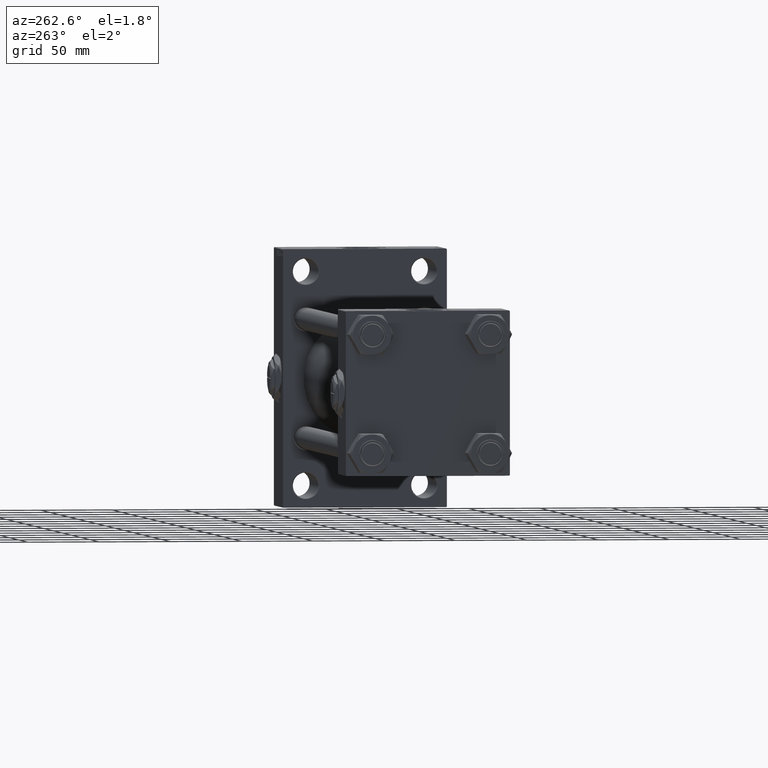
[diagram: clean part render]
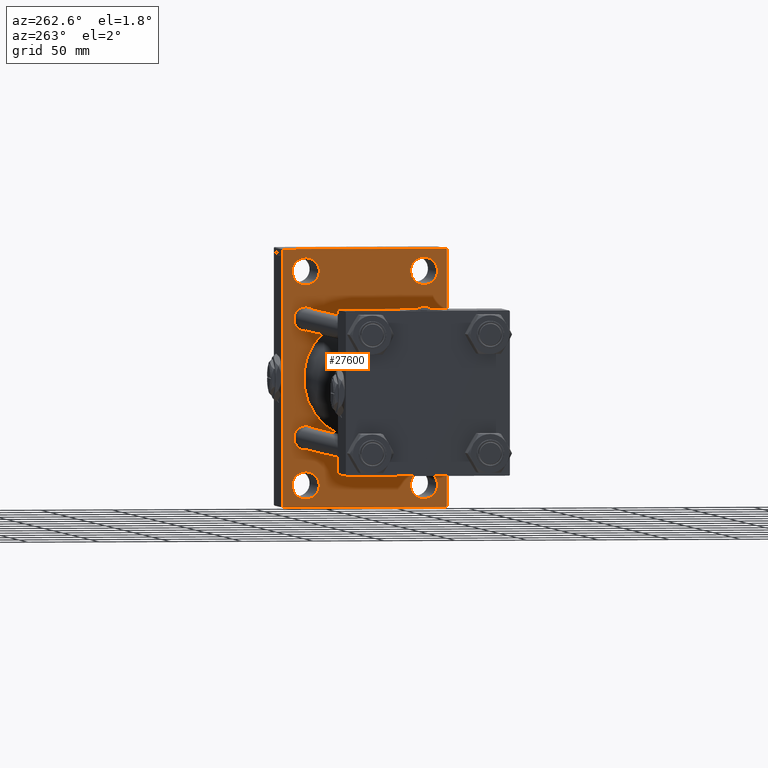
[diagram: same view with one face highlighted and labeled with its STEP entity id]
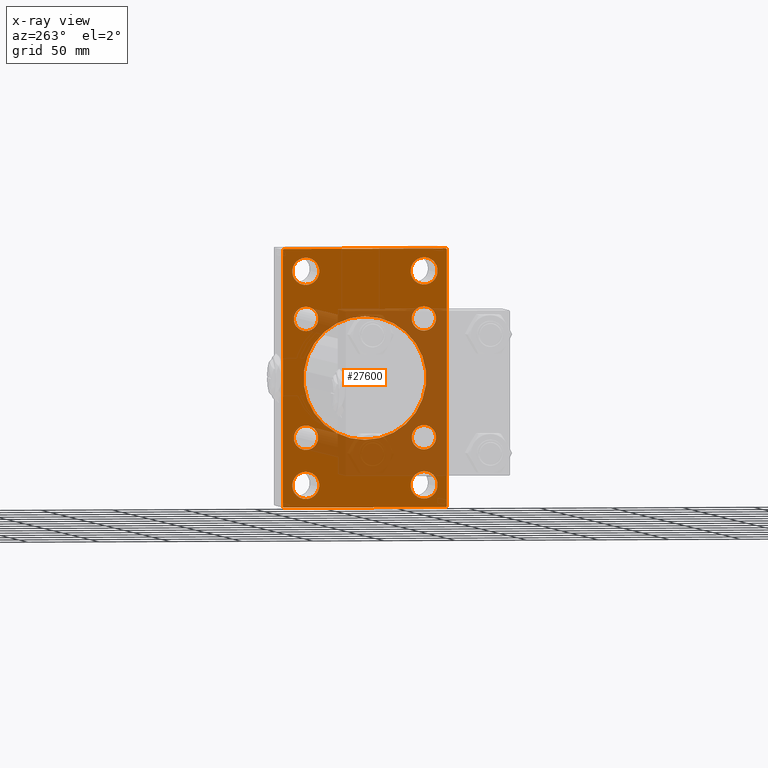
[diagram: x-ray of the same camera — body ghosted, the highlighted face saturated]
A machine part, auxiliary view. The second image highlights one B-rep face of the part: STEP entity #27600.
The next image is the same camera in x-ray: the body ghosted, the highlighted face saturated — about 34% of this face is hidden behind the body in this view.
In plain terms, the highlighted planar face has unit normal (-1, 0, 0).
Its self-contained STEP definition (entity closure, byte-faithful):
#502 = ORIENTED_EDGE ( 'NONE', *, *, #10834, .T. ) ;
#509 = EDGE_CURVE ( 'NONE', #21289, #12416, #23778, .T. ) ;
#1122 = EDGE_CURVE ( 'NONE', #27725, #47167, #48609, .T. ) ;
#1540 = DIRECTION ( 'NONE',  ( 1.000000000000000000, -0.000000000000000000, 0.000000000000000000 ) ) ;
#1635 = DIRECTION ( 'NONE',  ( 0.000000000000000000, 0.000000000000000000, 1.000000000000000000 ) ) ;
#1744 = DIRECTION ( 'NONE',  ( -0.000000000000000000, 0.7071067811865524577, 0.7071067811865426878 ) ) ;
#1807 = CARTESIAN_POINT ( 'NONE',  ( 339.9999999999999432, -41.49999999999999289, -74.49999999999998579 ) ) ;
#1819 = ORIENTED_EDGE ( 'NONE', *, *, #17760, .F. ) ;
#1879 = CARTESIAN_POINT ( 'NONE',  ( 339.9999999999999432, -2.602085213965210642E-15, 43.00000000000000000 ) ) ;
#1893 = FACE_BOUND ( 'NONE', #33715, .T. ) ;
#1930 = DIRECTION ( 'NONE',  ( 0.000000000000000000, 0.000000000000000000, -1.000000000000000000 ) ) ;
#2318 = EDGE_LOOP ( 'NONE', ( #47909, #6354 ) ) ;
#2450 = EDGE_CURVE ( 'NONE', #43880, #19335, #34297, .T. ) ;
#2942 = CIRCLE ( 'NONE', #20655, 8.500000000000007105 ) ;
#3247 = EDGE_CURVE ( 'NONE', #39988, #28836, #2942, .T. ) ;
#3262 = EDGE_CURVE ( 'NONE', #23697, #40721, #39130, .T. ) ;
#3271 = CARTESIAN_POINT ( 'NONE',  ( 339.9999999999999432, 57.49999999999997868, -90.00000000000000000 ) ) ;
#3511 = CARTESIAN_POINT ( 'NONE',  ( 339.9999999999999432, -41.49999999999999289, -65.00000000000008527 ) ) ;
#3549 = ORIENTED_EDGE ( 'NONE', *, *, #43380, .T. ) ;
#3555 = ORIENTED_EDGE ( 'NONE', *, *, #21917, .F. ) ;
#3757 = DIRECTION ( 'NONE',  ( 0.000000000000000000, -1.000000000000000000, -1.206764157201257045E-16 ) ) ;
#4033 = CIRCLE ( 'NONE', #18541, 9.499999999999896971 ) ;
#4074 = DIRECTION ( 'NONE',  ( 1.000000000000000000, -0.000000000000000000, 0.000000000000000000 ) ) ;
#4228 = DIRECTION ( 'NONE',  ( 1.000000000000000000, -0.000000000000000000, 0.000000000000000000 ) ) ;
#5087 = ORIENTED_EDGE ( 'NONE', *, *, #3247, .T. ) ;
#5378 = VECTOR ( 'NONE', #20298, 1000.000000000000114 ) ;
#5573 = EDGE_CURVE ( 'NONE', #19335, #43880, #15907, .T. ) ;
#5960 = DIRECTION ( 'NONE',  ( 1.000000000000000000, -0.000000000000000000, 0.000000000000000000 ) ) ;
#6157 = DIRECTION ( 'NONE',  ( 1.000000000000000000, -0.000000000000000000, 0.000000000000000000 ) ) ;
#6207 = ORIENTED_EDGE ( 'NONE', *, *, #26463, .T. ) ;
#6354 = ORIENTED_EDGE ( 'NONE', *, *, #3262, .T. ) ;
#6585 = DIRECTION ( 'NONE',  ( 1.000000000000000000, -0.000000000000000000, 0.000000000000000000 ) ) ;
#6610 = CIRCLE ( 'NONE', #13056, 9.499999999999896971 ) ;
#6810 = ORIENTED_EDGE ( 'NONE', *, *, #1122, .T. ) ;
#6913 = VECTOR ( 'NONE', #3757, 1000.000000000000000 ) ;
#7073 = EDGE_CURVE ( 'NONE', #17063, #43704, #36074, .T. ) ;
#7298 = CARTESIAN_POINT ( 'NONE',  ( 339.9999999999999432, 41.50000000000000711, -74.50000000000000000 ) ) ;
#7329 = CIRCLE ( 'NONE', #36250, 9.500000000000008882 ) ;
#7541 = ORIENTED_EDGE ( 'NONE', *, *, #37945, .T. ) ;
#7608 = VERTEX_POINT ( 'NONE', #30099 ) ;
#7649 = EDGE_LOOP ( 'NONE', ( #33360, #26423 ) ) ;
#7923 = EDGE_CURVE ( 'NONE', #12416, #21289, #41699, .T. ) ;
#8021 = VERTEX_POINT ( 'NONE', #42587 ) ;
#8222 = VERTEX_POINT ( 'NONE', #8540 ) ;
#8540 = CARTESIAN_POINT ( 'NONE',  ( 339.9999999999999432, -57.50000000000002132, 89.50000000000002842 ) ) ;
#8562 = AXIS2_PLACEMENT_3D ( 'NONE', #33956, #25403, #21631 ) ;
#9116 = CARTESIAN_POINT ( 'NONE',  ( 339.9999999999999432, -41.34999999999998721, -32.85000000000000142 ) ) ;
#9187 = ORIENTED_EDGE ( 'NONE', *, *, #20657, .T. ) ;
#9217 = FACE_BOUND ( 'NONE', #26786, .T. ) ;
#9453 = CARTESIAN_POINT ( 'NONE',  ( 339.9999999999999432, 41.50000000000000711, -74.50000000000000000 ) ) ;
#9463 = CARTESIAN_POINT ( 'NONE',  ( 339.9999999999999432, 0.000000000000000000, 0.000000000000000000 ) ) ;
#9882 = DIRECTION ( 'NONE',  ( 0.000000000000000000, 0.000000000000000000, 1.000000000000000000 ) ) ;
#9907 = EDGE_CURVE ( 'NONE', #7608, #8021, #32924, .T. ) ;
#10148 = CARTESIAN_POINT ( 'NONE',  ( 339.9999999999999432, -41.49999999999999289, 65.00000000000000000 ) ) ;
#10206 = FACE_BOUND ( 'NONE', #36917, .T. ) ;
#10551 = AXIS2_PLACEMENT_3D ( 'NONE', #9453, #6157, #1635 ) ;
#10647 = AXIS2_PLACEMENT_3D ( 'NONE', #19975, #11917, #31768 ) ;
#10834 = EDGE_CURVE ( 'NONE', #28836, #39988, #40889, .T. ) ;
#10998 = CARTESIAN_POINT ( 'NONE',  ( 339.9999999999999432, 41.34999999999999432, -32.84999999999999432 ) ) ;
#11231 = AXIS2_PLACEMENT_3D ( 'NONE', #14278, #36662, #48251 ) ;
#11254 = VERTEX_POINT ( 'NONE', #42624 ) ;
#11256 = ORIENTED_EDGE ( 'NONE', *, *, #509, .T. ) ;
#11917 = DIRECTION ( 'NONE',  ( 1.000000000000000000, -0.000000000000000000, 0.000000000000000000 ) ) ;
#12416 = VERTEX_POINT ( 'NONE', #45622 ) ;
#13056 = AXIS2_PLACEMENT_3D ( 'NONE', #45791, #4228, #42497 ) ;
#13252 = FACE_BOUND ( 'NONE', #21099, .T. ) ;
#13476 = VERTEX_POINT ( 'NONE', #23361 ) ;
#13490 = VECTOR ( 'NONE', #39448, 1000.000000000000114 ) ;
#13910 = CIRCLE ( 'NONE', #31565, 9.500000000000008882 ) ;
#14158 = VERTEX_POINT ( 'NONE', #19898 ) ;
#14278 = CARTESIAN_POINT ( 'NONE',  ( 339.9999999999999432, 41.34999999999999432, 41.35000000000000142 ) ) ;
#14621 = VECTOR ( 'NONE', #22643, 1000.000000000000000 ) ;
#15907 = CIRCLE ( 'NONE', #44026, 8.500000000000007105 ) ;
#16386 = LINE ( 'NONE', #31710, #49209 ) ;
#16430 = CARTESIAN_POINT ( 'NONE',  ( 339.9999999999999432, 41.50000000000000711, 74.50000000000001421 ) ) ;
#16447 = EDGE_CURVE ( 'NONE', #28205, #11254, #29009, .T. ) ;
#17057 = LINE ( 'NONE', #32640, #13490 ) ;
#17063 = VERTEX_POINT ( 'NONE', #10998 ) ;
#17192 = DIRECTION ( 'NONE',  ( 1.000000000000000000, -0.000000000000000000, 0.000000000000000000 ) ) ;
#17712 = EDGE_CURVE ( 'NONE', #11254, #28205, #13910, .T. ) ;
#17760 = EDGE_CURVE ( 'NONE', #8222, #49075, #24871, .T. ) ;
#17961 = CARTESIAN_POINT ( 'NONE',  ( 339.9999999999999432, 41.34999999999999432, -41.35000000000000142 ) ) ;
#18111 = CARTESIAN_POINT ( 'NONE',  ( 339.9999999999999432, 57.49999999999997158, 89.99999999999998579 ) ) ;
#18541 = AXIS2_PLACEMENT_3D ( 'NONE', #1807, #17192, #9882 ) ;
#18564 = CARTESIAN_POINT ( 'NONE',  ( 339.9999999999999432, 41.50000000000000711, -64.99999999999998579 ) ) ;
#18712 = CARTESIAN_POINT ( 'NONE',  ( 339.9999999999999432, -41.34999999999998721, 49.85000000000002274 ) ) ;
#18892 = EDGE_LOOP ( 'NONE', ( #24075, #3549 ) ) ;
#18996 = CARTESIAN_POINT ( 'NONE',  ( 339.9999999999999432, 41.50000000000000711, 84.00000000000001421 ) ) ;
#19145 = DIRECTION ( 'NONE',  ( 1.000000000000000000, -0.000000000000000000, 0.000000000000000000 ) ) ;
#19226 = AXIS2_PLACEMENT_3D ( 'NONE', #24621, #5960, #47764 ) ;
#19335 = VERTEX_POINT ( 'NONE', #18712 ) ;
#19427 = CARTESIAN_POINT ( 'NONE',  ( 339.9999999999999432, 41.34999999999999432, -49.85000000000001563 ) ) ;
#19516 = ORIENTED_EDGE ( 'NONE', *, *, #48723, .T. ) ;
#19660 = CARTESIAN_POINT ( 'NONE',  ( 339.9999999999999432, 41.50000000000000711, 74.50000000000001421 ) ) ;
#19898 = CARTESIAN_POINT ( 'NONE',  ( 339.9999999999999432, 56.99999999999997158, 89.99999999999998579 ) ) ;
#19908 = CARTESIAN_POINT ( 'NONE',  ( 339.9999999999999432, -41.34999999999998721, 32.85000000000000142 ) ) ;
#19975 = CARTESIAN_POINT ( 'NONE',  ( 339.9999999999999432, 41.34999999999999432, 41.35000000000000142 ) ) ;
#20002 = AXIS2_PLACEMENT_3D ( 'NONE', #22745, #41109, #26023 ) ;
#20220 = DIRECTION ( 'NONE',  ( 0.000000000000000000, 0.000000000000000000, 1.000000000000000000 ) ) ;
#20226 = CARTESIAN_POINT ( 'NONE',  ( 339.9999999999999432, -57.00000000000002132, -90.00000000000001421 ) ) ;
#20298 = DIRECTION ( 'NONE',  ( 0.000000000000000000, -0.7071067811865965336, 0.7071067811864985009 ) ) ;
#20655 = AXIS2_PLACEMENT_3D ( 'NONE', #39318, #42856, #23742 ) ;
#20657 = EDGE_CURVE ( 'NONE', #40387, #13476, #44707, .T. ) ;
#20714 = AXIS2_PLACEMENT_3D ( 'NONE', #9463, #40425, #40172 ) ;
#21010 = CARTESIAN_POINT ( 'NONE',  ( 339.9999999999999432, -41.34999999999998721, -49.85000000000002274 ) ) ;
#21099 = EDGE_LOOP ( 'NONE', ( #5087, #502 ) ) ;
#21289 = VERTEX_POINT ( 'NONE', #1879 ) ;
#21508 = ORIENTED_EDGE ( 'NONE', *, *, #33624, .T. ) ;
#21631 = DIRECTION ( 'NONE',  ( 0.000000000000000000, 0.000000000000000000, 1.000000000000000000 ) ) ;
#21917 = EDGE_CURVE ( 'NONE', #14158, #36601, #32181, .T. ) ;
#21929 = VECTOR ( 'NONE', #1930, 1000.000000000000000 ) ;
#22229 = DIRECTION ( 'NONE',  ( 1.000000000000000000, -0.000000000000000000, 0.000000000000000000 ) ) ;
#22643 = DIRECTION ( 'NONE',  ( 0.000000000000000000, 3.854941057726238467E-17, -1.000000000000000000 ) ) ;
#22745 = CARTESIAN_POINT ( 'NONE',  ( 339.9999999999999432, -2.602085213965210642E-15, 0.000000000000000000 ) ) ;
#22976 = VERTEX_POINT ( 'NONE', #3511 ) ;
#23361 = CARTESIAN_POINT ( 'NONE',  ( 339.9999999999999432, 41.50000000000000711, -84.00000000000000000 ) ) ;
#23495 = CARTESIAN_POINT ( 'NONE',  ( 339.9999999999999432, 41.34999999999999432, -41.35000000000000142 ) ) ;
#23697 = VERTEX_POINT ( 'NONE', #25712 ) ;
#23742 = DIRECTION ( 'NONE',  ( 0.000000000000000000, 0.000000000000000000, 1.000000000000000000 ) ) ;
#23778 = CIRCLE ( 'NONE', #27785, 43.00000000000000000 ) ;
#24075 = ORIENTED_EDGE ( 'NONE', *, *, #7073, .T. ) ;
#24104 = CARTESIAN_POINT ( 'NONE',  ( 339.9999999999999432, -2.602085213965210642E-15, 0.000000000000000000 ) ) ;
#24249 = ORIENTED_EDGE ( 'NONE', *, *, #35926, .T. ) ;
#24325 = LINE ( 'NONE', #39892, #5378 ) ;
#24528 = EDGE_CURVE ( 'NONE', #14158, #44183, #17057, .T. ) ;
#24621 = CARTESIAN_POINT ( 'NONE',  ( 339.9999999999999432, -41.34999999999998721, -41.35000000000000853 ) ) ;
#24625 = CARTESIAN_POINT ( 'NONE',  ( 339.9999999999999432, -57.50000000000002132, 89.99999999999997158 ) ) ;
#24871 = LINE ( 'NONE', #24625, #21929 ) ;
#25233 = CARTESIAN_POINT ( 'NONE',  ( 339.9999999999999432, -41.49999999999999289, 74.50000000000001421 ) ) ;
#25380 = CARTESIAN_POINT ( 'NONE',  ( 339.9999999999999432, -57.50000000000002132, -89.50000000000002842 ) ) ;
#25403 = DIRECTION ( 'NONE',  ( 1.000000000000000000, -0.000000000000000000, 0.000000000000000000 ) ) ;
#25490 = VECTOR ( 'NONE', #28912, 1000.000000000000000 ) ;
#25712 = CARTESIAN_POINT ( 'NONE',  ( 339.9999999999999432, 41.50000000000000711, 65.00000000000000000 ) ) ;
#25830 = CIRCLE ( 'NONE', #10551, 9.500000000000008882 ) ;
#26023 = DIRECTION ( 'NONE',  ( 0.000000000000000000, 0.000000000000000000, -1.000000000000000000 ) ) ;
#26423 = ORIENTED_EDGE ( 'NONE', *, *, #16447, .T. ) ;
#26463 = EDGE_CURVE ( 'NONE', #47167, #49075, #24325, .T. ) ;
#26717 = CIRCLE ( 'NONE', #10647, 8.500000000000007105 ) ;
#26786 = EDGE_LOOP ( 'NONE', ( #11256, #40349 ) ) ;
#26896 = LINE ( 'NONE', #18111, #14621 ) ;
#26900 = CARTESIAN_POINT ( 'NONE',  ( 339.9999999999999432, -57.00000000000007105, 89.99999999999997158 ) ) ;
#27079 = AXIS2_PLACEMENT_3D ( 'NONE', #16430, #1540, #20220 ) ;
#27229 = LINE ( 'NONE', #42832, #41957 ) ;
#27600 = ADVANCED_FACE ( 'NONE', ( #44448, #44200, #32622, #44691, #1893, #10206, #32376, #13252, #9217, #43946 ), #35896, .T. ) ;
#27725 = VERTEX_POINT ( 'NONE', #28597 ) ;
#27785 = AXIS2_PLACEMENT_3D ( 'NONE', #24104, #43463, #39432 ) ;
#28095 = ORIENTED_EDGE ( 'NONE', *, *, #9907, .T. ) ;
#28205 = VERTEX_POINT ( 'NONE', #10148 ) ;
#28597 = CARTESIAN_POINT ( 'NONE',  ( 339.9999999999999432, 56.99999999999997868, -90.00000000000000000 ) ) ;
#28836 = VERTEX_POINT ( 'NONE', #21010 ) ;
#28912 = DIRECTION ( 'NONE',  ( 0.000000000000000000, -1.000000000000000000, -1.206764157201257291E-16 ) ) ;
#29009 = CIRCLE ( 'NONE', #40251, 9.500000000000008882 ) ;
#29857 = ORIENTED_EDGE ( 'NONE', *, *, #2450, .T. ) ;
#30099 = CARTESIAN_POINT ( 'NONE',  ( 339.9999999999999432, 41.34999999999999432, 49.85000000000001563 ) ) ;
#31241 = CARTESIAN_POINT ( 'NONE',  ( 339.9999999999999432, -41.49999999999999289, -83.99999999999988631 ) ) ;
#31295 = CARTESIAN_POINT ( 'NONE',  ( 339.9999999999999432, -41.34999999999998721, 41.35000000000000853 ) ) ;
#31565 = AXIS2_PLACEMENT_3D ( 'NONE', #43501, #43750, #47768 ) ;
#31710 = CARTESIAN_POINT ( 'NONE',  ( 339.9999999999999432, -73.49999999999960210, 73.50000000000062528 ) ) ;
#31768 = DIRECTION ( 'NONE',  ( 0.000000000000000000, 0.000000000000000000, 1.000000000000000000 ) ) ;
#32181 = LINE ( 'NONE', #44003, #25490 ) ;
#32289 = DIRECTION ( 'NONE',  ( 0.000000000000000000, 0.000000000000000000, 1.000000000000000000 ) ) ;
#32376 = FACE_BOUND ( 'NONE', #18892, .T. ) ;
#32422 = EDGE_LOOP ( 'NONE', ( #9187, #35649 ) ) ;
#32622 = FACE_BOUND ( 'NONE', #32422, .T. ) ;
#32640 = CARTESIAN_POINT ( 'NONE',  ( 339.9999999999999432, 73.49999999999998579, 73.49999999999998579 ) ) ;
#32924 = CIRCLE ( 'NONE', #11231, 8.500000000000007105 ) ;
#33360 = ORIENTED_EDGE ( 'NONE', *, *, #17712, .T. ) ;
#33624 = EDGE_CURVE ( 'NONE', #22976, #46295, #4033, .T. ) ;
#33715 = EDGE_LOOP ( 'NONE', ( #41545, #29857 ) ) ;
#33956 = CARTESIAN_POINT ( 'NONE',  ( 339.9999999999999432, -41.34999999999998721, 41.35000000000000853 ) ) ;
#34052 = DIRECTION ( 'NONE',  ( 0.000000000000000000, 0.000000000000000000, 1.000000000000000000 ) ) ;
#34175 = EDGE_LOOP ( 'NONE', ( #21508, #7541 ) ) ;
#34267 = ORIENTED_EDGE ( 'NONE', *, *, #37300, .T. ) ;
#34296 = VERTEX_POINT ( 'NONE', #42143 ) ;
#34295 = AXIS2_PLACEMENT_3D ( 'NONE', #7298, #19145, #34472 ) ;
#34297 = CIRCLE ( 'NONE', #8562, 8.500000000000007105 ) ;
#34472 = DIRECTION ( 'NONE',  ( 0.000000000000000000, 0.000000000000000000, 1.000000000000000000 ) ) ;
#35268 = DIRECTION ( 'NONE',  ( -0.000000000000000000, -0.7071067811865573427, -0.7071067811865378028 ) ) ;
#35637 = CIRCLE ( 'NONE', #48509, 8.500000000000007105 ) ;
#35649 = ORIENTED_EDGE ( 'NONE', *, *, #46960, .T. ) ;
#35896 = PLANE ( 'NONE',  #20714 ) ;
#35926 = EDGE_CURVE ( 'NONE', #44183, #34296, #26896, .T. ) ;
#36074 = CIRCLE ( 'NONE', #39273, 8.500000000000007105 ) ;
#36250 = AXIS2_PLACEMENT_3D ( 'NONE', #19660, #38509, #42534 ) ;
#36601 = VERTEX_POINT ( 'NONE', #26900 ) ;
#36662 = DIRECTION ( 'NONE',  ( 1.000000000000000000, -0.000000000000000000, 0.000000000000000000 ) ) ;
#36917 = EDGE_LOOP ( 'NONE', ( #28095, #34267 ) ) ;
#37300 = EDGE_CURVE ( 'NONE', #8021, #7608, #26717, .T. ) ;
#37720 = EDGE_CURVE ( 'NONE', #8222, #36601, #16386, .T. ) ;
#37945 = EDGE_CURVE ( 'NONE', #46295, #22976, #6610, .T. ) ;
#38509 = DIRECTION ( 'NONE',  ( 1.000000000000000000, -0.000000000000000000, 0.000000000000000000 ) ) ;
#39058 = EDGE_CURVE ( 'NONE', #40721, #23697, #7329, .T. ) ;
#39130 = CIRCLE ( 'NONE', #27079, 9.500000000000008882 ) ;
#39273 = AXIS2_PLACEMENT_3D ( 'NONE', #17961, #22229, #34052 ) ;
#39318 = CARTESIAN_POINT ( 'NONE',  ( 339.9999999999999432, -41.34999999999998721, -41.35000000000000853 ) ) ;
#39432 = DIRECTION ( 'NONE',  ( 0.000000000000000000, 0.000000000000000000, -1.000000000000000000 ) ) ;
#39448 = DIRECTION ( 'NONE',  ( 0.000000000000000000, 0.7071067811865474617, -0.7071067811865474617 ) ) ;
#39892 = CARTESIAN_POINT ( 'NONE',  ( 339.9999999999999432, -73.49999999999603517, -73.50000000000625278 ) ) ;
#39988 = VERTEX_POINT ( 'NONE', #9116 ) ;
#40172 = DIRECTION ( 'NONE',  ( -0.000000000000000000, 0.000000000000000000, 1.000000000000000000 ) ) ;
#40251 = AXIS2_PLACEMENT_3D ( 'NONE', #25233, #6585, #49130 ) ;
#40349 = ORIENTED_EDGE ( 'NONE', *, *, #7923, .T. ) ;
#40387 = VERTEX_POINT ( 'NONE', #18564 ) ;
#40425 = DIRECTION ( 'NONE',  ( -1.000000000000000000, 0.000000000000000000, -0.000000000000000000 ) ) ;
#40721 = VERTEX_POINT ( 'NONE', #18996 ) ;
#40889 = CIRCLE ( 'NONE', #19226, 8.500000000000007105 ) ;
#41109 = DIRECTION ( 'NONE',  ( 1.000000000000000000, 0.000000000000000000, 0.000000000000000000 ) ) ;
#41545 = ORIENTED_EDGE ( 'NONE', *, *, #5573, .T. ) ;
#41699 = CIRCLE ( 'NONE', #20002, 43.00000000000000000 ) ;
#41957 = VECTOR ( 'NONE', #35268, 1000.000000000000000 ) ;
#42143 = CARTESIAN_POINT ( 'NONE',  ( 339.9999999999999432, 57.49999999999997868, -89.49999999999995737 ) ) ;
#42497 = DIRECTION ( 'NONE',  ( 0.000000000000000000, 0.000000000000000000, 1.000000000000000000 ) ) ;
#42534 = DIRECTION ( 'NONE',  ( 0.000000000000000000, 0.000000000000000000, 1.000000000000000000 ) ) ;
#42587 = CARTESIAN_POINT ( 'NONE',  ( 339.9999999999999432, 41.34999999999999432, 32.84999999999999432 ) ) ;
#42624 = CARTESIAN_POINT ( 'NONE',  ( 339.9999999999999432, -41.49999999999999289, 84.00000000000001421 ) ) ;
#42832 = CARTESIAN_POINT ( 'NONE',  ( 339.9999999999999432, 73.49999999999920419, -73.50000000000125056 ) ) ;
#42856 = DIRECTION ( 'NONE',  ( 1.000000000000000000, -0.000000000000000000, 0.000000000000000000 ) ) ;
#43380 = EDGE_CURVE ( 'NONE', #43704, #17063, #35637, .T. ) ;
#43463 = DIRECTION ( 'NONE',  ( 1.000000000000000000, 0.000000000000000000, 0.000000000000000000 ) ) ;
#43501 = CARTESIAN_POINT ( 'NONE',  ( 339.9999999999999432, -41.49999999999999289, 74.50000000000001421 ) ) ;
#43704 = VERTEX_POINT ( 'NONE', #19427 ) ;
#43750 = DIRECTION ( 'NONE',  ( 1.000000000000000000, -0.000000000000000000, 0.000000000000000000 ) ) ;
#43880 = VERTEX_POINT ( 'NONE', #19908 ) ;
#43946 = FACE_OUTER_BOUND ( 'NONE', #49758, .T. ) ;
#44003 = CARTESIAN_POINT ( 'NONE',  ( 339.9999999999999432, 57.49999999999997158, 89.99999999999998579 ) ) ;
#44026 = AXIS2_PLACEMENT_3D ( 'NONE', #31295, #46667, #32289 ) ;
#44183 = VERTEX_POINT ( 'NONE', #46953 ) ;
#44200 = FACE_BOUND ( 'NONE', #34175, .T. ) ;
#44448 = FACE_BOUND ( 'NONE', #7649, .T. ) ;
#44691 = FACE_BOUND ( 'NONE', #2318, .T. ) ;
#44707 = CIRCLE ( 'NONE', #34295, 9.500000000000008882 ) ;
#44852 = ORIENTED_EDGE ( 'NONE', *, *, #37720, .T. ) ;
#45622 = CARTESIAN_POINT ( 'NONE',  ( 339.9999999999999432, 2.663896022368408223E-15, -43.00000000000000000 ) ) ;
#45791 = CARTESIAN_POINT ( 'NONE',  ( 339.9999999999999432, -41.49999999999999289, -74.49999999999998579 ) ) ;
#46295 = VERTEX_POINT ( 'NONE', #31241 ) ;
#46640 = DIRECTION ( 'NONE',  ( 0.000000000000000000, 0.000000000000000000, 1.000000000000000000 ) ) ;
#46667 = DIRECTION ( 'NONE',  ( 1.000000000000000000, -0.000000000000000000, 0.000000000000000000 ) ) ;
#46953 = CARTESIAN_POINT ( 'NONE',  ( 339.9999999999999432, 57.49999999999997158, 89.49999999999998579 ) ) ;
#46960 = EDGE_CURVE ( 'NONE', #13476, #40387, #25830, .T. ) ;
#47167 = VERTEX_POINT ( 'NONE', #20226 ) ;
#47764 = DIRECTION ( 'NONE',  ( 0.000000000000000000, 0.000000000000000000, 1.000000000000000000 ) ) ;
#47768 = DIRECTION ( 'NONE',  ( 0.000000000000000000, 0.000000000000000000, 1.000000000000000000 ) ) ;
#47909 = ORIENTED_EDGE ( 'NONE', *, *, #39058, .T. ) ;
#48251 = DIRECTION ( 'NONE',  ( 0.000000000000000000, 0.000000000000000000, 1.000000000000000000 ) ) ;
#48509 = AXIS2_PLACEMENT_3D ( 'NONE', #23495, #4074, #46640 ) ;
#48609 = LINE ( 'NONE', #3271, #6913 ) ;
#48723 = EDGE_CURVE ( 'NONE', #34296, #27725, #27229, .T. ) ;
#49075 = VERTEX_POINT ( 'NONE', #25380 ) ;
#49130 = DIRECTION ( 'NONE',  ( 0.000000000000000000, 0.000000000000000000, 1.000000000000000000 ) ) ;
#49209 = VECTOR ( 'NONE', #1744, 1000.000000000000000 ) ;
#49287 = ORIENTED_EDGE ( 'NONE', *, *, #24528, .T. ) ;
#49758 = EDGE_LOOP ( 'NONE', ( #6810, #6207, #1819, #44852, #3555, #49287, #24249, #19516 ) ) ;